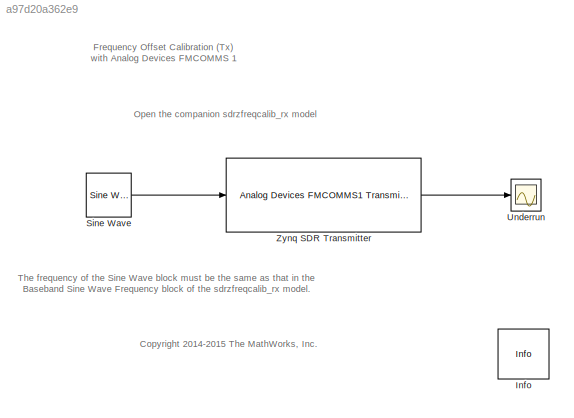
MODEL slx_a97d20a362e9
KIND model
CONFIG AbsTol = auto
CONFIG FixedStep = auto
CONFIG MaxStep = auto
CONFIG MinStep = auto
CONFIG RelTol = 1e-3
CONFIG SampleTimeConstraint = Unconstrained
CONFIG Solver = FixedStepDiscrete
CONFIG SolverMode = SingleTasking
CONFIG SolverName = FixedStepDiscrete
CONFIG StartTime = 0.0
CONFIG StopTime = inf
BLOCK [Reference] Info  REF=sdrzblksprivate/Info
  Ports = []
  SourceBlock = sdrzblksprivate/Info
  SourceType = Info
BLOCK [Reference] Sine Wave  REF=dspsrcs4/Sine Wave
  Ports = [0, 1]
  SourceBlock = dspsrcs4/Sine Wave
  SourceType = Sine Wave
BLOCK [Scope] Underrun
  Ports = [1]
  ScopeSpecificationString = C++SS(StrPVP('Location','[188, 390, 512, 629]'),StrPVP('Open','off'),MxPVP('AxesTitles',24,'struct(''axes1'',''%<SignalLabel>'')'),MxPVP('ScopeGraphics',28,'struct(''FigureColor'',''[0.5 0.5 0.5]'',''AxesColor'',''[0 0 0]'',''AxesTickColor'',''[1 1 1]'',''LineColors'',''[1 1 0;1 0 1;0 1 1;1 0 0;0 1 0;0 0 1]'',''LineStyles'',''-|-|-|-|-|-'',''LineWidths'',''[0.5 0.5 0.5 0.5 0.5 0.5]'',''MarkerStyle...<+414ch>
BLOCK [Reference] Zynq SDR Transmitter  REF=sdrzlib/Analog Devices
FMCOMMS1 Transmitter
  Ports = [1, 1]
  SourceBlock = sdrzlib/Analog Devices\nFMCOMMS1 Transmitter
  SourceLibraryInfo = This block requires Communications System Toolbox Support Package for Xilinx FPGA-Based Radio. <a href="http://www.mathworks.com/hardware-support-packages">More information</a>
  SourceType = Zynq-Based Analog Devices FMCOMMS1 Transmitter
ANNOTATION (root): <copyright redacted>
ANNOTATION (root): Frequency Offset Calibration (Tx) with Analog Devices FMCOMMS 1
ANNOTATION (root): Open the companion sdrzfreqcalib_rx model
ANNOTATION (root): The frequency of the Sine Wave block must be the same as that in the Baseband Sine Wave Frequency block of the sdrzfreqcalib_rx model.
LINE Sine Wave:1 -> Zynq SDR Transmitter:1
LINE Zynq SDR Transmitter:1 -> Underrun:1
